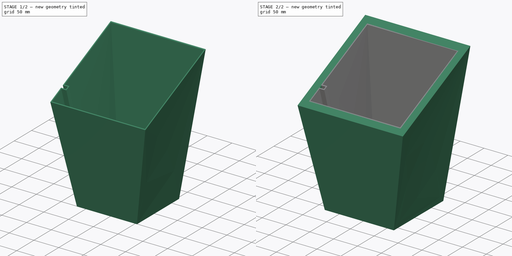
[diagram: build sequence overview — one tinted view per stage of 2, left to right]
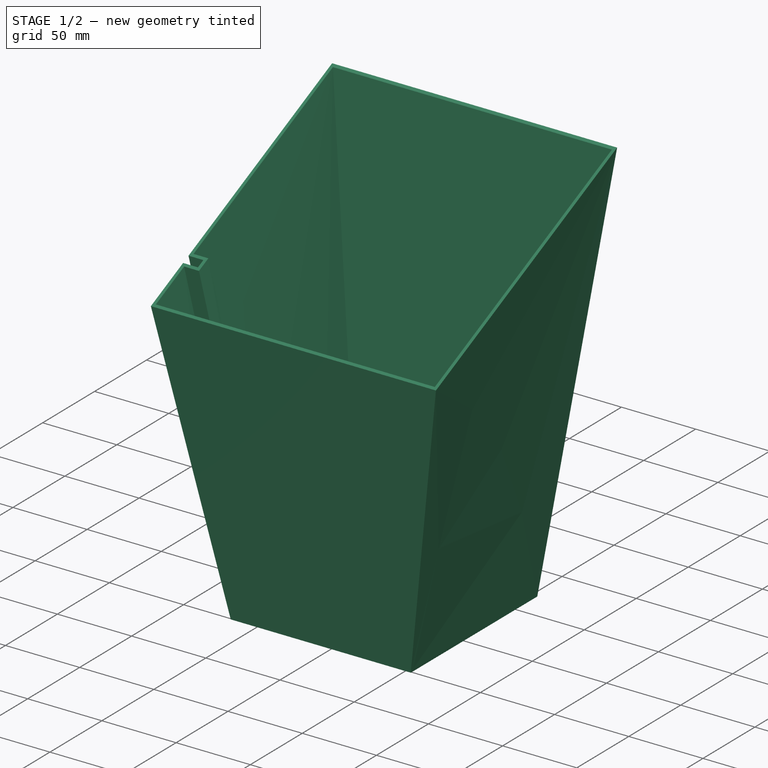
[diagram: stage 1 of 2 — iso view after this stage's code; geometry added in this stage tinted green]
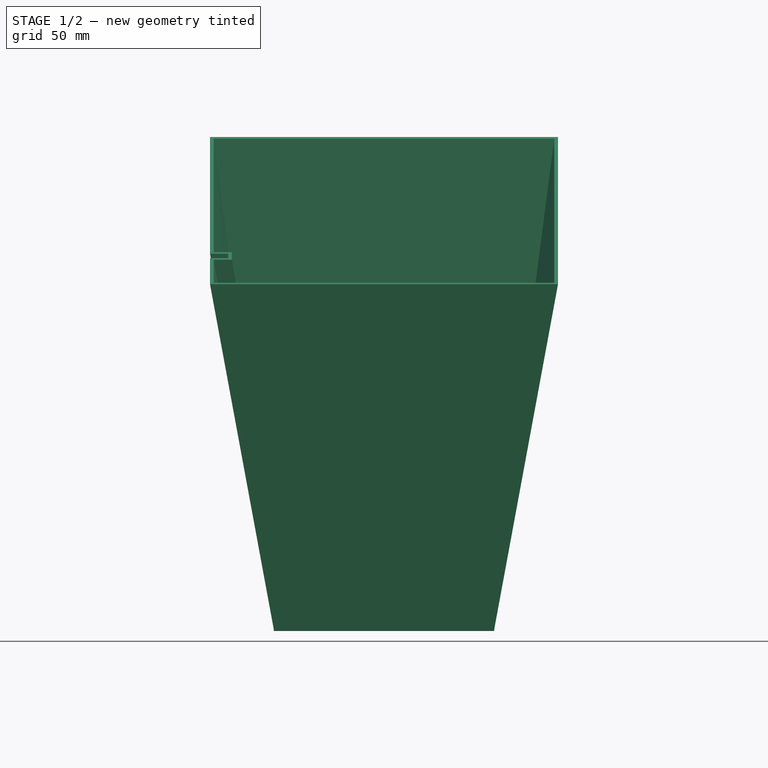
[diagram: stage 1 of 2 — front view after this stage's code; geometry added in this stage tinted green]
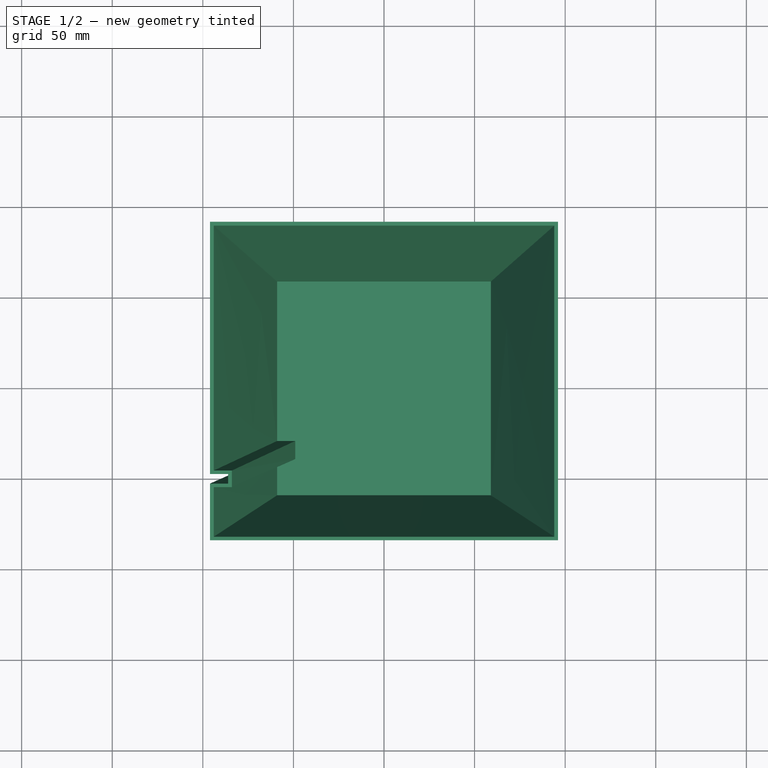
[diagram: stage 1 of 2 — top view after this stage's code; geometry added in this stage tinted green]
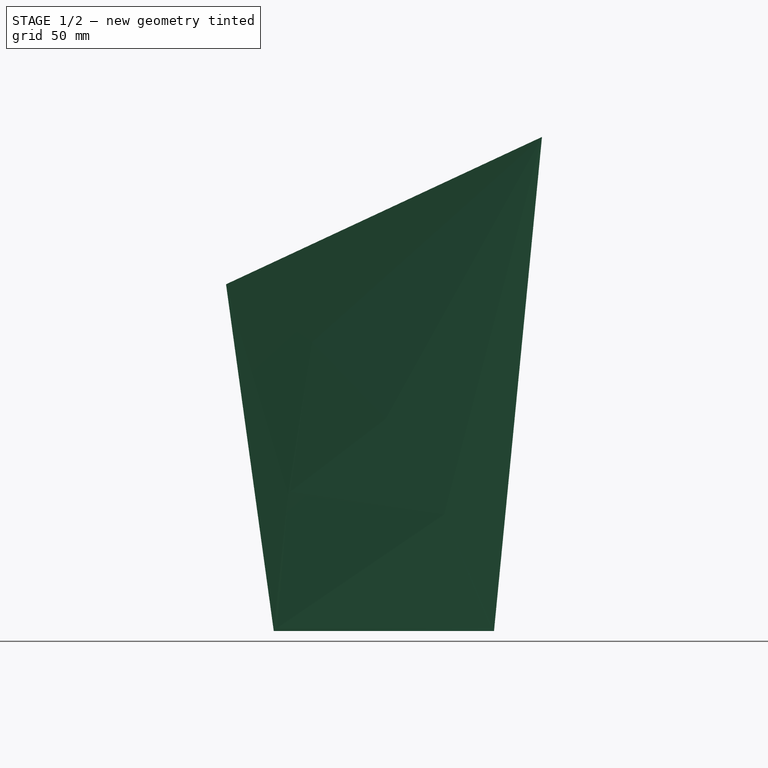
[diagram: stage 1 of 2 — right view after this stage's code; geometry added in this stage tinted green]
FCSTD DOCUMENT  (FreeCAD 0.15R4671 (Git))
Label: ermina_v2
License: All rights reserved
LicenseURL: http://en.wikipedia.org/wiki/All_rights_reserved
objects: Sketcher::SketchObject×4, Part::Loft×2, Part::Thickness×2
note: 8 computed .brp shape members not serialized (recipe doc carries the construction recipe); baked Part::Feature solids carry a one-line shape summary decoded from their .brp

FEATURE [Sketcher::SketchObject] Sketch002  label="plastic_bottom"
  sketch-geometry (8):
    g0: LineSegment StartX=-59 StartY=59 StartZ=0 EndX=59 EndY=59 EndZ=0
    g1: LineSegment StartX=59 StartY=59 StartZ=0 EndX=59 EndY=-59 EndZ=0
    g2: LineSegment StartX=59 StartY=-59 StartZ=0 EndX=-59 EndY=-59 EndZ=0
    g3: LineSegment StartX=-59 StartY=-29 StartZ=0 EndX=-49 EndY=-29 EndZ=0
    g4: LineSegment StartX=-49 StartY=-29 StartZ=0 EndX=-49 EndY=-39 EndZ=0
    g5: LineSegment StartX=-49 StartY=-39 StartZ=0 EndX=-59 EndY=-39 EndZ=0
    g6: LineSegment StartX=-59 StartY=-59 StartZ=0 EndX=-59 EndY=-39 EndZ=0
    g7: LineSegment StartX=-59 StartY=59 StartZ=0 EndX=-59 EndY=-29 EndZ=0
  constraints (24):
    c: Coincident(g0,g1)
    c: Coincident(g1,g2)
    c: Horizontal(g0)
    c: Horizontal(g2)
    c: Vertical(g1)
    c: Equal(g0,g1)
    c: DistanceX(g0) = 118
    c: DistanceY(g-1,g0) = 59
    c: DistanceX(g-2,g0) = -59
    c: Horizontal(g3)
    c: Coincident(g3,g4)
    c: Vertical(g4)
    c: Coincident(g4,g5)
    c: Horizontal(g5)
    c: DistanceX(g3) = 10
    c: Equal(g5,g3)
    c: DistanceY(g4) = -10
    c: Distance(g4,g2) = 20
    c: Coincident(g6,g2)
    c: Coincident(g6,g5)
    c: Vertical(g6)
    c: Coincident(g7,g0)
    c: Coincident(g7,g3)
    c: Vertical(g7)
FEATURE [Sketcher::SketchObject] Sketch003  label="plastic_top"
  Placement = pos=(0,0,230) rot=(1,0,0;0.436332rad)
  sketch-geometry (8):
    g0: LineSegment StartX=-94 StartY=94 StartZ=0 EndX=94 EndY=94 EndZ=0
    g1: LineSegment StartX=94 StartY=94 StartZ=0 EndX=94 EndY=-94 EndZ=0
    g2: LineSegment StartX=94 StartY=-94 StartZ=0 EndX=-94 EndY=-94 EndZ=0
    g3: LineSegment StartX=-94 StartY=-54 StartZ=0 EndX=-84 EndY=-54 EndZ=0
    g4: LineSegment StartX=-84 StartY=-54 StartZ=0 EndX=-84 EndY=-64 EndZ=0
    g5: LineSegment StartX=-84 StartY=-64 StartZ=0 EndX=-94 EndY=-64 EndZ=0
    g6: LineSegment StartX=-94 StartY=94 StartZ=0 EndX=-94 EndY=-54 EndZ=0
    g7: LineSegment StartX=-94 StartY=-94 StartZ=0 EndX=-94 EndY=-64 EndZ=0
  constraints (24):
    c: Coincident(g0,g1)
    c: Coincident(g1,g2)
    c: Horizontal(g0)
    c: Horizontal(g2)
    c: Vertical(g1)
    c: Equal(g0,g1)
    c: DistanceX(g0) = 188
    c: DistanceY(g-1,g0) = 94
    c: DistanceX(g-2,g0) = -94
    c: Horizontal(g3)
    c: Coincident(g3,g4)
    c: Vertical(g4)
    c: Coincident(g4,g5)
    c: Horizontal(g5)
    c: DistanceX(g5) = -10
    c: DistanceX(g3) = 10
    c: DistanceY(g4) = -10
    c: Distance(g4,g2) = 30
    c: Coincident(g6,g0)
    c: Coincident(g6,g3)
    c: Vertical(g6)
    c: Coincident(g7,g2)
    c: Coincident(g7,g5)
    c: Vertical(g7)
FEATURE [Part::Loft] Loft001
  Closed = false
  Ruled = false
  Sections = -> [Sketch002,Sketch003]
  Solid = true
FEATURE [Part::Thickness] Thickness001
  Faces = -> Loft001 [Face10]
  Intersection = false
  Join = 2
  Mode = 0
  SelfIntersection = false
  Value = 2
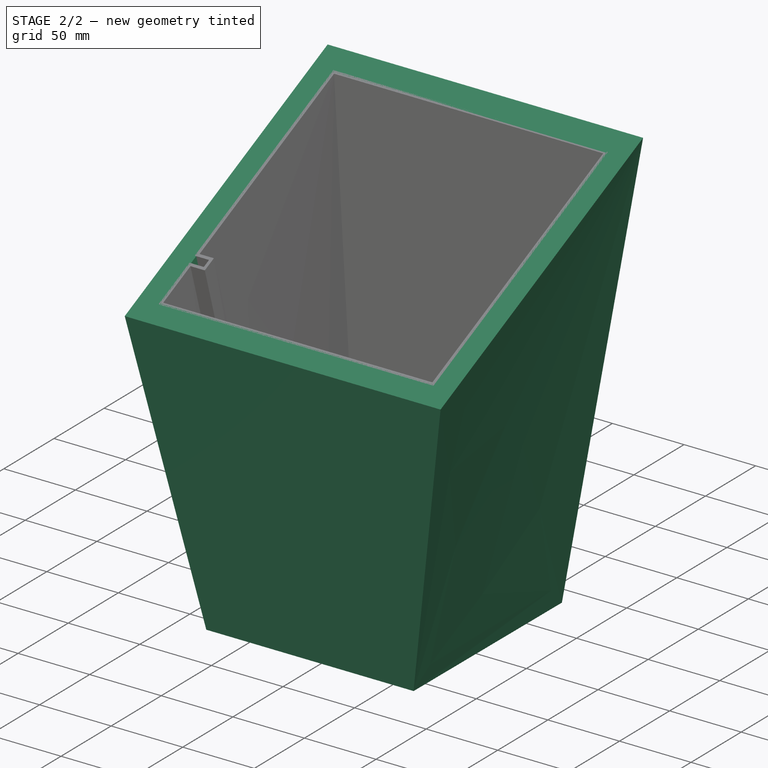
[diagram: stage 2 of 2 — iso view after this stage's code; geometry added in this stage tinted green]
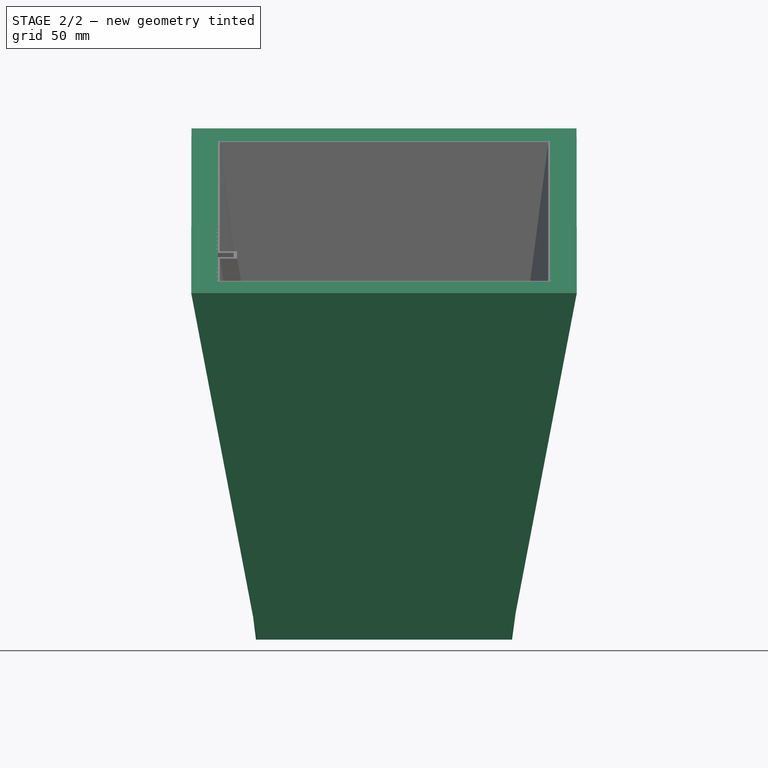
[diagram: stage 2 of 2 — front view after this stage's code; geometry added in this stage tinted green]
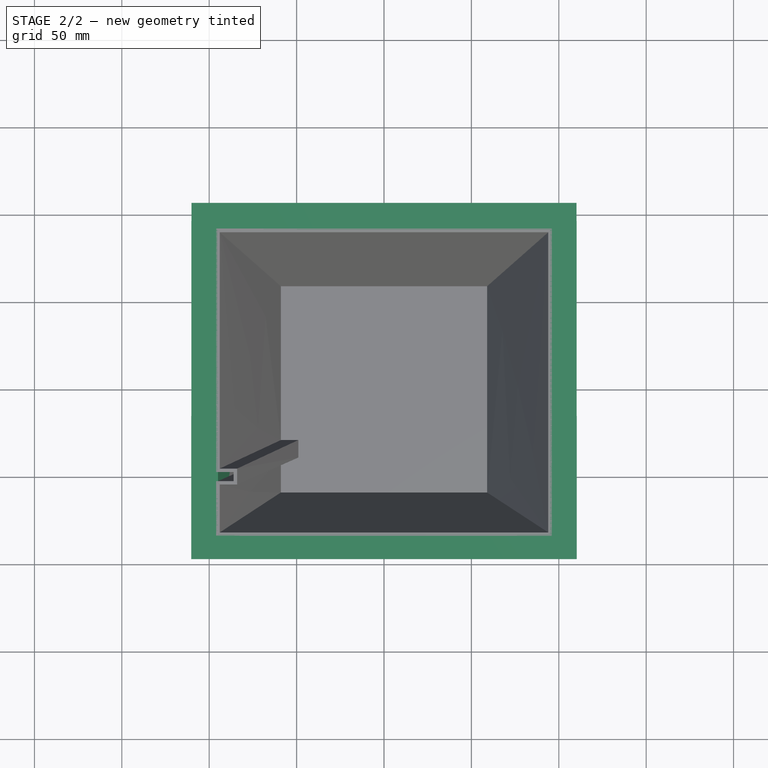
[diagram: stage 2 of 2 — top view after this stage's code; geometry added in this stage tinted green]
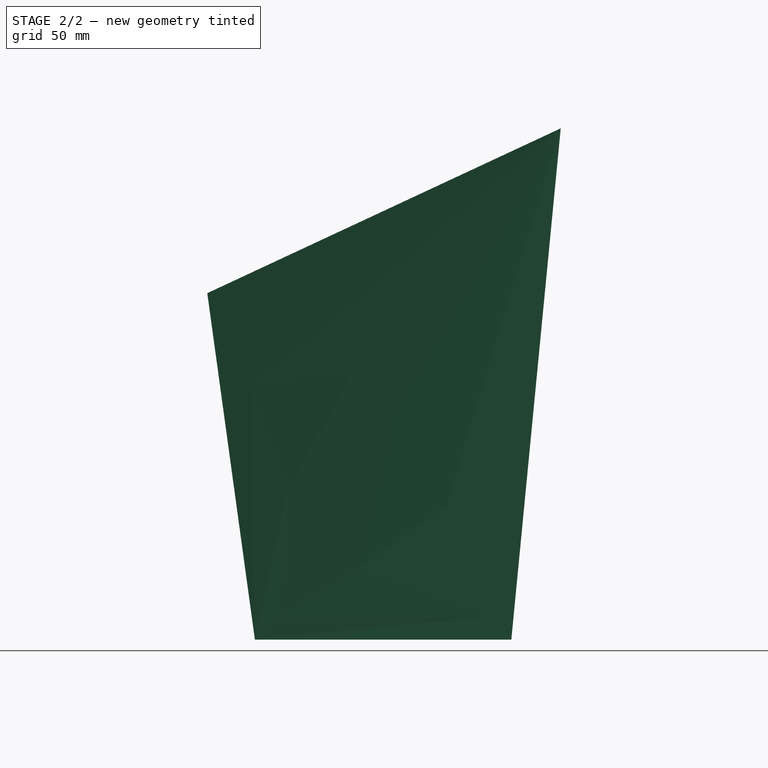
[diagram: stage 2 of 2 — right view after this stage's code; geometry added in this stage tinted green]
FEATURE [Sketcher::SketchObject] Sketch  label="bottom"
  sketch-geometry (4):
    g0: LineSegment StartX=-60 StartY=60 StartZ=0 EndX=60 EndY=60 EndZ=0
    g1: LineSegment StartX=60 StartY=60 StartZ=0 EndX=60 EndY=-60 EndZ=0
    g2: LineSegment StartX=60 StartY=-60 StartZ=0 EndX=-60 EndY=-60 EndZ=0
    g3: LineSegment StartX=-60 StartY=-60 StartZ=0 EndX=-60 EndY=60 EndZ=0
  constraints (12):
    c: Coincident(g0,g1)
    c: Coincident(g1,g2)
    c: Coincident(g2,g3)
    c: Coincident(g3,g0)
    c: Horizontal(g0)
    c: Horizontal(g2)
    c: Vertical(g1)
    c: Vertical(g3)
    c: Equal(g0,g1)
    c: DistanceX(g0) = 120
    c: DistanceX(g-2,g0) = 60
    c: DistanceY(g-1,g0) = 60
FEATURE [Sketcher::SketchObject] Sketch001  label="top"
  Placement = pos=(0,0,230) rot=(1,0,0;0.436332rad)
  sketch-geometry (4):
    g0: LineSegment StartX=-95 StartY=95 StartZ=0 EndX=95 EndY=95 EndZ=0
    g1: LineSegment StartX=95 StartY=95 StartZ=0 EndX=95 EndY=-95 EndZ=0
    g2: LineSegment StartX=95 StartY=-95 StartZ=0 EndX=-95 EndY=-95 EndZ=0
    g3: LineSegment StartX=-95 StartY=-95 StartZ=0 EndX=-95 EndY=95 EndZ=0
  constraints (12):
    c: Coincident(g0,g1)
    c: Coincident(g1,g2)
    c: Coincident(g2,g3)
    c: Coincident(g3,g0)
    c: Horizontal(g0)
    c: Horizontal(g2)
    c: Vertical(g1)
    c: Vertical(g3)
    c: Equal(g0,g1)
    c: DistanceX(g0) = 190
    c: DistanceX(g-2,g0) = -95
    c: DistanceY(g-1,g0) = 95
FEATURE [Part::Loft] Loft
  Closed = false
  Ruled = false
  Sections = -> [Sketch,Sketch001]
  Solid = true
FEATURE [Part::Thickness] Thickness  label="outer"
  Faces = -> Loft [Face6]
  Intersection = false
  Join = 2
  Mode = 0
  SelfIntersection = false
  Value = 15
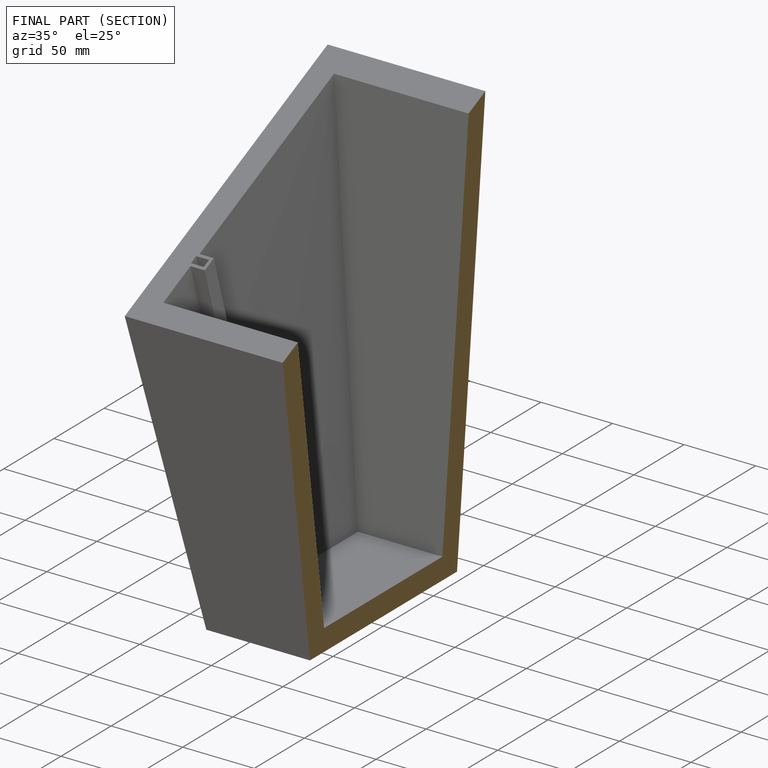
[diagram: finished part — half-section view (interior)]
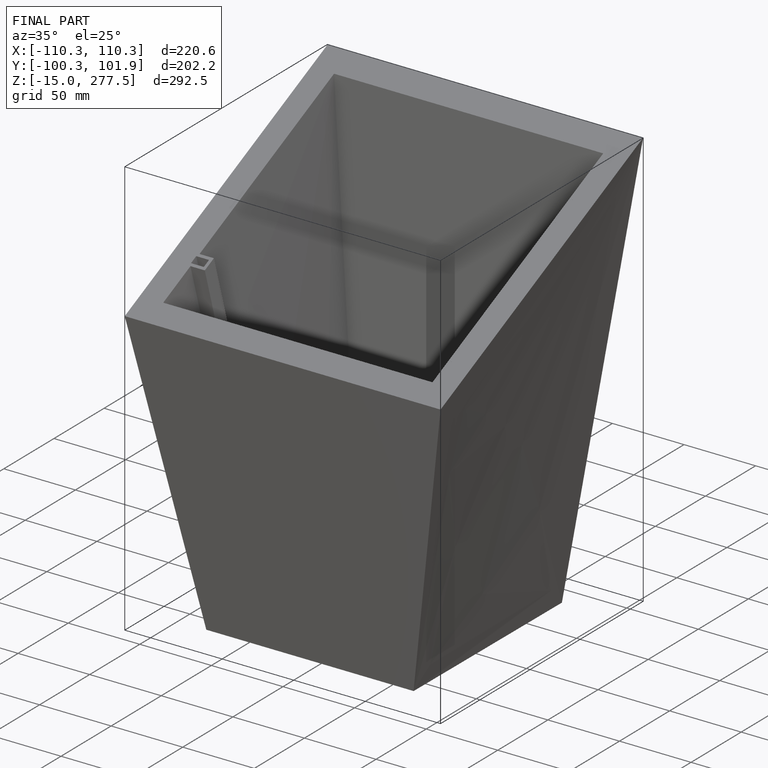
[diagram: finished part — iso view with bounding-box wireframe]
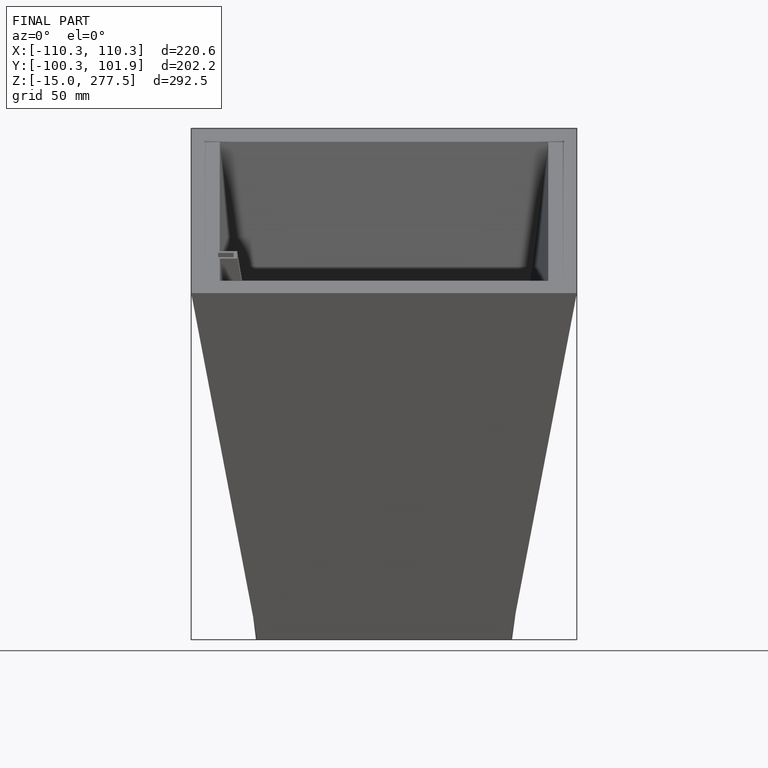
[diagram: finished part — front view with bounding-box wireframe]
